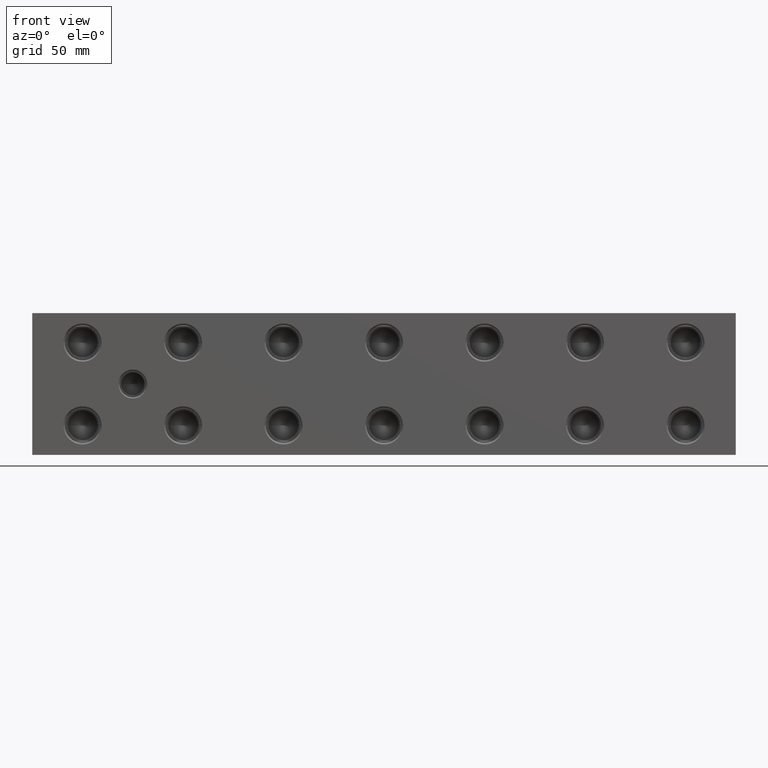
[diagram: clean part render]
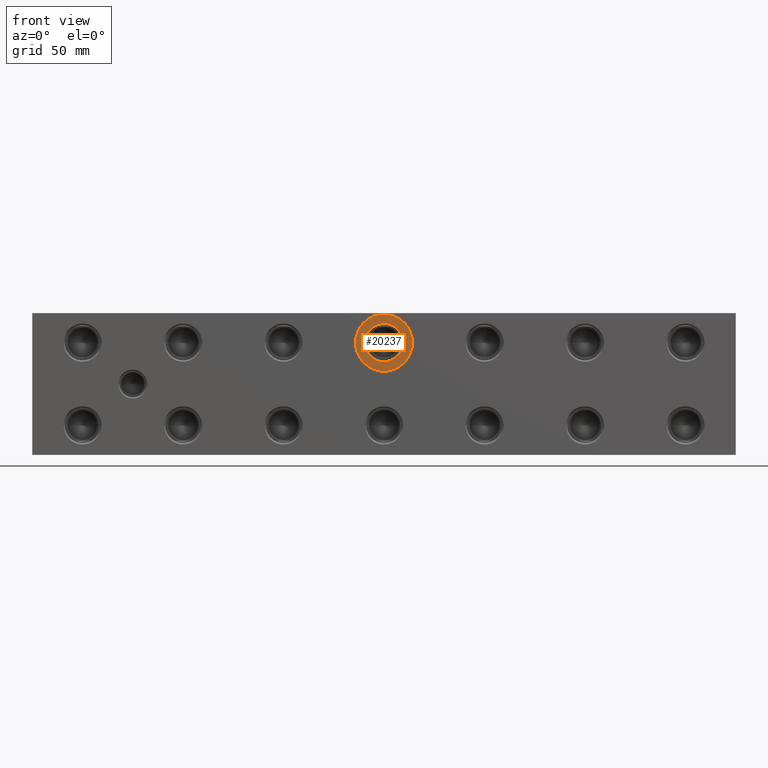
[diagram: same view with one face highlighted and labeled with its STEP entity id]
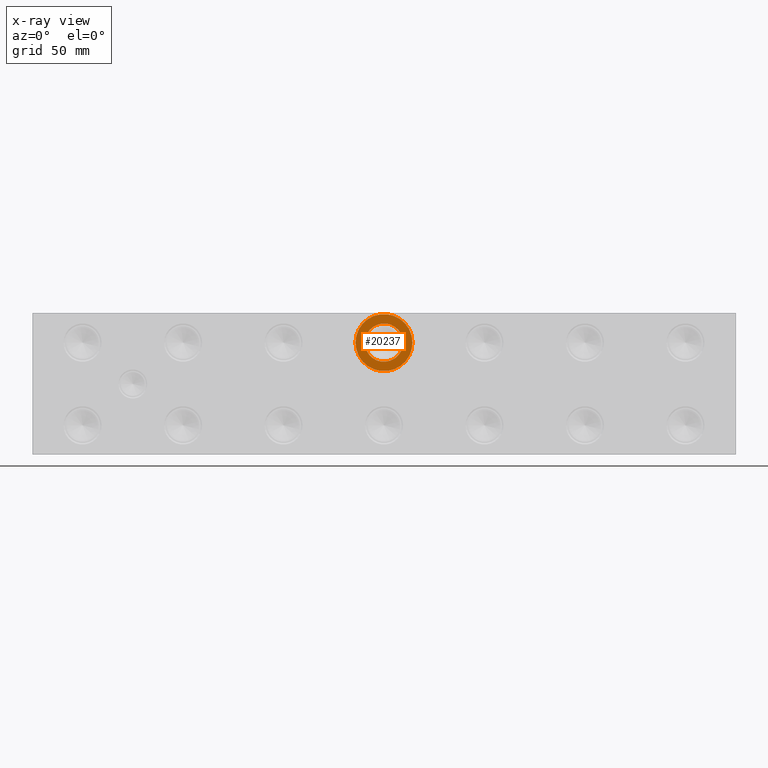
[diagram: x-ray of the same camera — body ghosted, the highlighted face saturated]
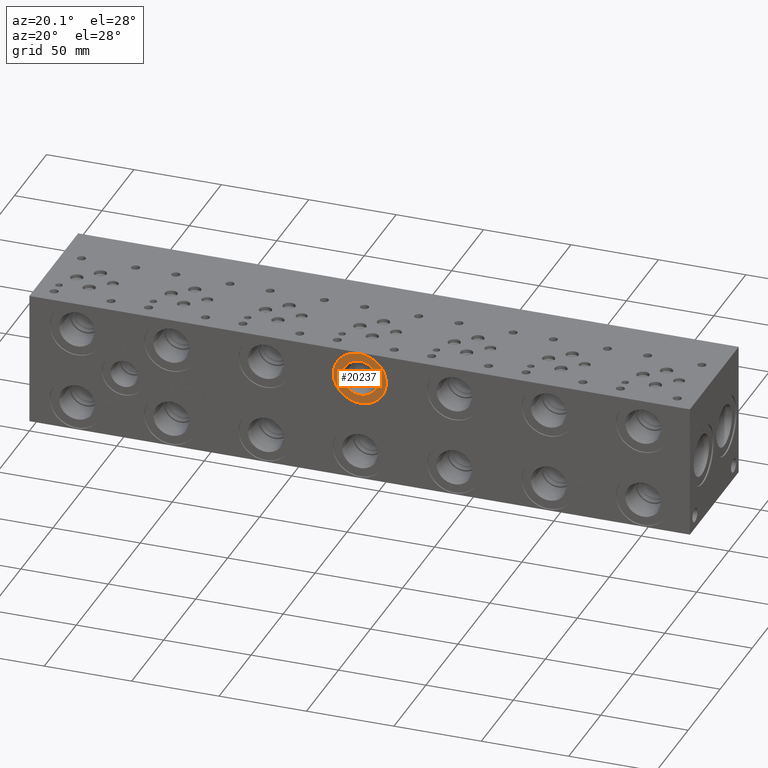
[diagram: same view with one face highlighted and labeled with its STEP entity id]
A machine part, front view. The second image highlights one B-rep face of the part: STEP entity #20237.
The next image is the same camera in x-ray: the body ghosted, the highlighted face saturated — about 0% of this face is hidden behind the body in this view.
A second angle (auxiliary view) of the same face is appended — the face is thin or edge-on in the first view.
In plain terms, the highlighted planar face has unit normal (0, 1, 0).
Its self-contained STEP definition (entity closure, byte-faithful):
#397=CIRCLE('',#21156,15.3162);
#398=CIRCLE('',#21157,15.3162);
#399=CIRCLE('',#21159,10.2997);
#400=CIRCLE('',#21160,10.2997);
#1172=FACE_BOUND('',#3670,.T.);
#1751=PLANE('',#21158);
#2496=FACE_OUTER_BOUND('',#3669,.T.);
#3669=EDGE_LOOP('',(#16599,#16600));
#3670=EDGE_LOOP('',(#16601,#16602));
#9314=VERTEX_POINT('',#33792);
#9315=VERTEX_POINT('',#33794);
#9316=VERTEX_POINT('',#33798);
#9317=VERTEX_POINT('',#33799);
#11937=EDGE_CURVE('',#9314,#9315,#397,.T.);
#11938=EDGE_CURVE('',#9315,#9314,#398,.T.);
#11939=EDGE_CURVE('',#9316,#9317,#399,.T.);
#11940=EDGE_CURVE('',#9317,#9316,#400,.T.);
#16599=ORIENTED_EDGE('',*,*,#11938,.F.);
#16600=ORIENTED_EDGE('',*,*,#11937,.F.);
#16601=ORIENTED_EDGE('',*,*,#11939,.T.);
#16602=ORIENTED_EDGE('',*,*,#11940,.T.);
#20237=ADVANCED_FACE('',(#2496,#1172),#1751,.F.);
#21156=AXIS2_PLACEMENT_3D('',#33795,#24603,#24604);
#21157=AXIS2_PLACEMENT_3D('',#33796,#24605,#24606);
#21158=AXIS2_PLACEMENT_3D('',#33797,#24607,#24608);
#21159=AXIS2_PLACEMENT_3D('',#33800,#24609,#24610);
#21160=AXIS2_PLACEMENT_3D('',#33801,#24611,#24612);
#24603=DIRECTION('center_axis',(0.,1.,0.));
#24604=DIRECTION('ref_axis',(1.,0.,0.));
#24605=DIRECTION('center_axis',(0.,1.,0.));
#24606=DIRECTION('ref_axis',(1.,0.,0.));
#24607=DIRECTION('center_axis',(0.,1.,0.));
#24608=DIRECTION('ref_axis',(0.,0.,1.));
#24609=DIRECTION('center_axis',(0.,1.,0.));
#24610=DIRECTION('ref_axis',(1.,0.,0.));
#24611=DIRECTION('center_axis',(0.,1.,0.));
#24612=DIRECTION('ref_axis',(1.,0.,0.));
#33792=CARTESIAN_POINT('',(173.5836,0.7874,60.325));
#33794=CARTESIAN_POINT('',(204.216,0.7874,60.325));
#33795=CARTESIAN_POINT('Origin',(188.8998,0.7874,60.325));
#33796=CARTESIAN_POINT('Origin',(188.8998,0.7874,60.325));
#33797=CARTESIAN_POINT('Origin',(199.1995,0.7874,60.325));
#33798=CARTESIAN_POINT('',(199.1995,0.7874,60.325));
#33799=CARTESIAN_POINT('',(178.6001,0.7874,60.325));
#33800=CARTESIAN_POINT('Origin',(188.8998,0.7874,60.325));
#33801=CARTESIAN_POINT('Origin',(188.8998,0.7874,60.325));